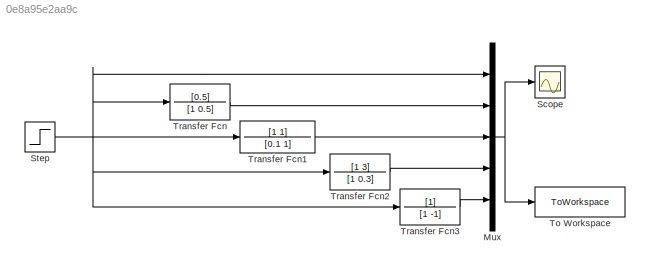
MODEL slx_0e8a95e2aa9c
KIND model
CONFIG AbsTol = auto
CONFIG EnableMultiTasking = off
CONFIG FixedStep = auto
CONFIG MaxStep = auto
CONFIG MinStep = auto
CONFIG RelTol = 1e-3
CONFIG SampleTimeConstraint = Unconstrained
CONFIG SolverName = VariableStepAuto
CONFIG StartTime = 0.0
CONFIG StopTime = 20.0
BLOCK [Mux] Mux
  DisplayOption = bar
  Inputs = 5
BLOCK [Scope] Scope
  Floating = off
  NumInputPorts = 1
  ScopeSpecificationString = Simulink.scopes.TimeScopeBlockCfg('CurrentConfiguration', extmgr.ConfigurationSet(extmgr.Configuration('Core','General UI',true),extmgr.Configuration('Core','Source UI',true),extmgr.Configuration('Sources','WiredSimulink',true),extmgr.Configuration('Visuals','Time Domain',true,'SerializedDisplays',{struct('MinYLimReal','-56045785.2254','MaxYLimReal','504411977.039','YLabelReal','','MinYLimMag','  ...<+1538ch>
BLOCK [Step] Step
  SampleTime = 0
  Time = 0
BLOCK [ToWorkspace] To Workspace
  FixptAsFi = on
  MaxDataPoints = inf
  SampleTime = -1
  VariableName = simoutA4
BLOCK [TransferFcn] Transfer Fcn
  Denominator = [1 0.5]
  Numerator = [0.5]
BLOCK [TransferFcn] Transfer Fcn1
  Denominator = [0.1 1]
  Numerator = [1 1]
BLOCK [TransferFcn] Transfer Fcn2
  Denominator = [1 0.3]
  Numerator = [1 3]
BLOCK [TransferFcn] Transfer Fcn3
  Denominator = [1 -1]
NET Mux:1 -> Scope:1, To Workspace:1
NET Step:1 -> Mux:1, Transfer Fcn1:1, Transfer Fcn2:1, Transfer Fcn3:1, Transfer Fcn:1
LINE Transfer Fcn1:1 -> Mux:3
LINE Transfer Fcn2:1 -> Mux:4
LINE Transfer Fcn3:1 -> Mux:5
LINE Transfer Fcn:1 -> Mux:2
note: NET lines group one-source signal fan-out (src -> all destinations, sorted); 1:1 wires keep LINE
